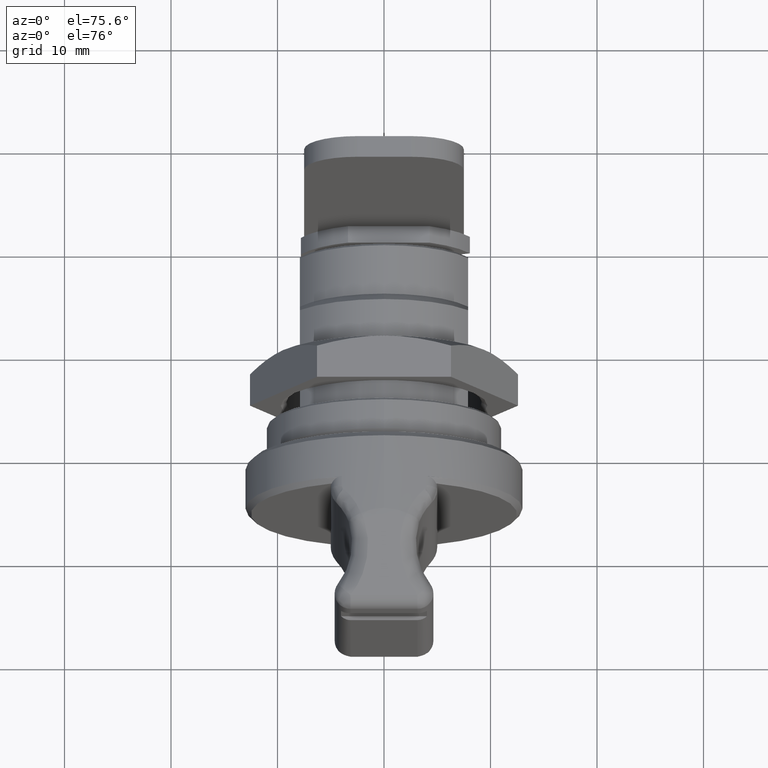
[diagram: clean part render]
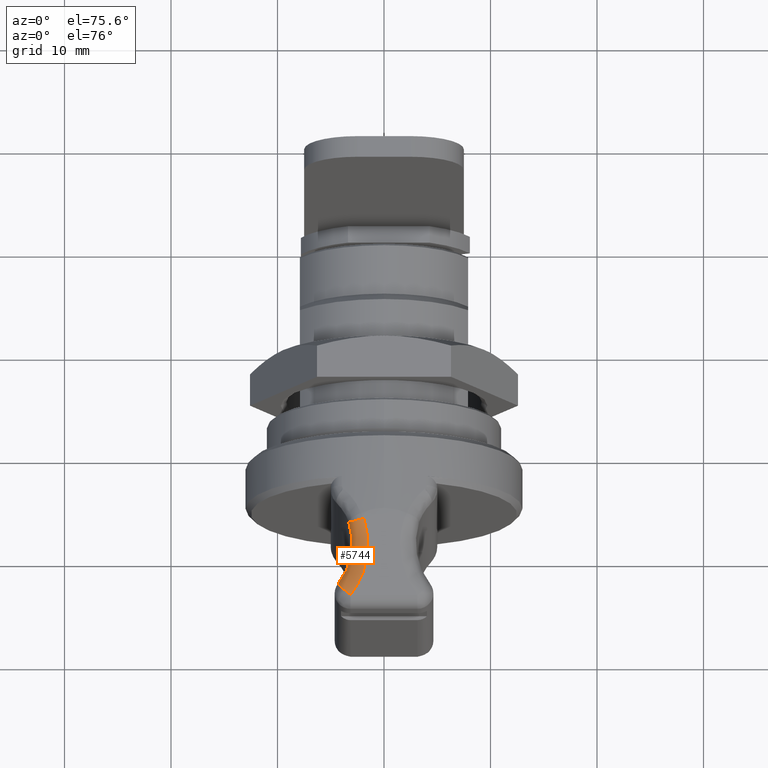
[diagram: same view with one face highlighted and labeled with its STEP entity id]
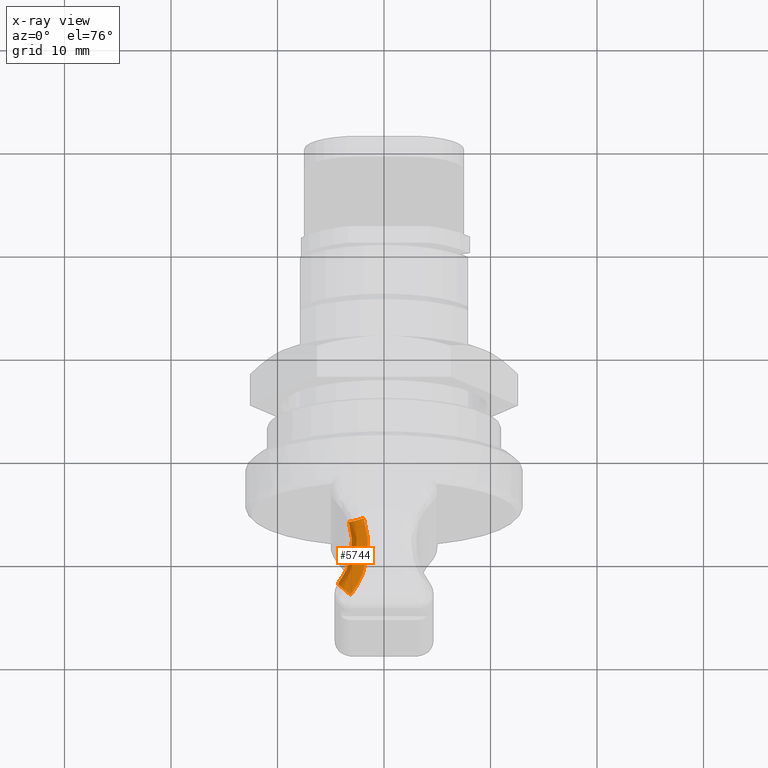
[diagram: x-ray of the same camera — body ghosted, the highlighted face saturated]
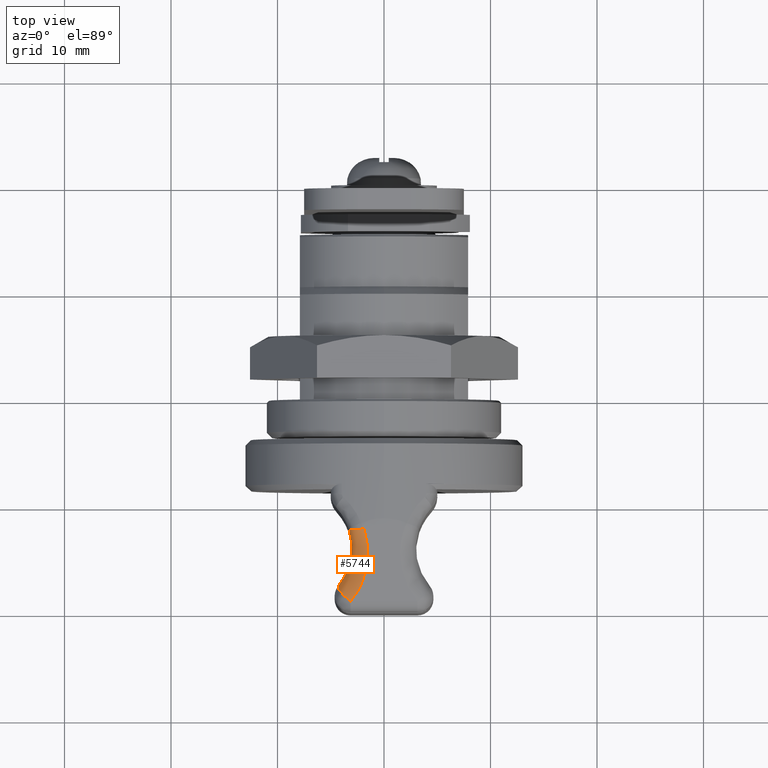
[diagram: same view with one face highlighted and labeled with its STEP entity id]
A machine part, auxiliary view. The second image highlights one B-rep face of the part: STEP entity #5744.
The next image is the same camera in x-ray: the body ghosted, the highlighted face saturated — about 0% of this face is hidden behind the body in this view.
A second angle (top view) of the same face is appended — the face is thin or edge-on in the first view.
In plain terms, the highlighted face is a freeform B-spline surface patch.
Its self-contained STEP definition (entity closure, byte-faithful):
#65 = CARTESIAN_POINT ( 'NONE',  ( -13.35225776170000100, 1.568268776210000300, 12.34626196650000000 ) ) ;
#83 = CARTESIAN_POINT ( 'NONE',  ( -12.34782109123591600, 2.989131911341862400, 12.12717788441817200 ) ) ;
#322 = CARTESIAN_POINT ( 'NONE',  ( -12.89645429470488800, 1.674421811471255900, 12.50713377833178800 ) ) ;
#362 = CARTESIAN_POINT ( 'NONE',  ( -17.43564194611657600, 2.145554250246651100, 10.90506754841130600 ) ) ;
#436 = CARTESIAN_POINT ( 'NONE',  ( -17.53571428569999900, 4.287076491349999700, 8.938727378450000300 ) ) ;
#478 = B_SPLINE_CURVE_WITH_KNOTS ( 'NONE', 3,
 ( #10252, #4280, #5986, #899, #6847, #1767, #7721, #2609, #8579, #3472, #9446, #4313, #10284, #5174, #83, #6014, #936, #6894, #1798, #7760, #2651, #8618, #3507, #9483, #4353, #10317 ),
 .UNSPECIFIED., .F., .F.,
 ( 4, 2, 2, 1, 1, 1, 2, 2, 2, 2, 1, 2, 2, 2, 4 ),
 ( 0.0000000000000000000, 0.1249999999999385200, 0.1874999999999077100, 0.2187499999998922800, 0.2343749999998850400, 0.2421874999998834300, 0.2460937499998841200, 0.2499999999998848100, 0.3749999999999110200, 0.4374999999999233900, 0.4687499999999295600, 0.4843749999999315000, 0.4999999999999335000, 0.7499999999999666900, 1.000000000000000000 ),
 .UNSPECIFIED. ) ;
#797 = FACE_OUTER_BOUND ( 'NONE', #8350, .T. ) ;
#803 = CARTESIAN_POINT ( 'NONE',  ( -15.45544280270000000, 3.174901473719999900, 9.873180878850000400 ) ) ;
#899 = CARTESIAN_POINT ( 'NONE',  ( -12.27369230717699500, 3.234080916470180700, 11.67456626904470300 ) ) ;
#924 = CARTESIAN_POINT ( 'NONE',  ( -13.09880738829999900, 3.053639752740000100, 10.93177646610000100 ) ) ;
#936 = CARTESIAN_POINT ( 'NONE',  ( -12.35330654520352300, 2.917124316180261800, 12.21399263427506000 ) ) ;
#1020 = ORIENTED_EDGE ( 'NONE', *, *, #1642, .F. ) ;
#1032 = B_SPLINE_CURVE_WITH_KNOTS ( 'NONE', 3,
 ( #8827, #2859, #322, #6269, #1190, #7130, #2062, #8005, #2892, #8859, #3739, #9714, #4589, #10565, #5459, #362, #6299, #1225, #7168, #2097 ),
 .UNSPECIFIED., .F., .F.,
 ( 4, 1, 1, 1, 2, 2, 2, 1, 1, 1, 2, 2, 4 ),
 ( 0.0000000000000000000, 0.1250000000000016900, 0.1875000000000025500, 0.2187500000000026600, 0.2343750000000027200, 0.2500000000000027800, 0.5000000000000013300, 0.6250000000000007800, 0.6875000000000004400, 0.7187500000000001100, 0.7343750000000000000, 0.7499999999999997800, 1.000000000000000000 ),
 .UNSPECIFIED. ) ;
#1190 = CARTESIAN_POINT ( 'NONE',  ( -13.66405207685019200, 1.549265713279331000, 12.23621691404343200 ) ) ;
#1225 = CARTESIAN_POINT ( 'NONE',  ( -18.04417623830590100, 2.434547358772757500, 10.69029073940189900 ) ) ;
#1306 = CARTESIAN_POINT ( 'NONE',  ( -17.59303969539999800, 4.281182455559999800, 10.84951540160000000 ) ) ;
#1634 = CARTESIAN_POINT ( 'NONE',  ( -12.18305969120138800, 3.308783580483962300, 11.34312837280012200 ) ) ;
#1642 = EDGE_CURVE ( 'NONE', #7914, #4244, #478, .T. ) ;
#1663 = VERTEX_POINT ( 'NONE', #5108 ) ;
#1671 = CARTESIAN_POINT ( 'NONE',  ( -16.76941785960000100, 3.724509157680000000, 9.282946093910002400 ) ) ;
#1767 = CARTESIAN_POINT ( 'NONE',  ( -12.29275153987835100, 3.200176554593182000, 11.76184971376505900 ) ) ;
#1785 = CARTESIAN_POINT ( 'NONE',  ( -13.07141282700000000, 3.037129630199999900, 12.44538370810000100 ) ) ;
#1798 = CARTESIAN_POINT ( 'NONE',  ( -12.35484924603390900, 2.872954581573810000, 12.26208629601059700 ) ) ;
#2062 = CARTESIAN_POINT ( 'NONE',  ( -13.84911002470589200, 1.530155682935608900, 12.17090234421158400 ) ) ;
#2097 = CARTESIAN_POINT ( 'NONE',  ( -18.99923017660633900, 3.138097352635414800, 10.35321287881796300 ) ) ;
#2125 = B_SPLINE_CURVE_WITH_KNOTS ( 'NONE', 3,
 ( #10121, #2494, #5054, #11029, #5890, #803, #6763, #1671, #7625, #2522 ),
 .UNSPECIFIED., .F., .F.,
 ( 4, 2, 2, 2, 4 ),
 ( 0.0000000000000000000, 0.2500000000048307500, 0.4999999999999995600, 0.7500000000048311400, 1.000000000000000000 ),
 .UNSPECIFIED. ) ;
#2135 = CARTESIAN_POINT ( 'NONE',  ( -18.99923017660000100, 3.138097352630000000, 10.35321287880000100 ) ) ;
#2164 = CARTESIAN_POINT ( 'NONE',  ( -18.02394381610000100, 2.422102564319999800, 10.69743159429999900 ) ) ;
#2388 = CARTESIAN_POINT ( 'NONE',  ( -15.97561762200000000, 3.316465501880000700, 11.42037025099999800 ) ) ;
#2494 = CARTESIAN_POINT ( 'NONE',  ( -12.63076763060000100, 3.152084545810000200, 11.14201892410000000 ) ) ;
#2513 =( BOUNDED_CURVE ( )  B_SPLINE_CURVE ( 2, ( #8139, #3018, #3868 ),
 .UNSPECIFIED., .F., .F. ) 
 B_SPLINE_CURVE_WITH_KNOTS ( ( 3, 3 ),
 ( 0.0000000000000000000, 1.000000000000000000 ),
 .UNSPECIFIED. ) 
 CURVE ( )  GEOMETRIC_REPRESENTATION_ITEM ( )  RATIONAL_B_SPLINE_CURVE ( ( 1.000000000000000000, 0.6269147509928590900, 1.000000000000000000 ) ) 
 REPRESENTATION_ITEM ( '' )  );
#2522 = CARTESIAN_POINT ( 'NONE',  ( -17.53571428570208500, 4.287076491347514600, 8.938727378466513300 ) ) ;
#2592 = CARTESIAN_POINT ( 'NONE',  ( -15.45544280270000000, 3.174901473719999900, 9.873180878850000400 ) ) ;
#2609 = CARTESIAN_POINT ( 'NONE',  ( -12.30259161747126500, 3.178715511952693500, 11.81081903328006000 ) ) ;
#2638 = CARTESIAN_POINT ( 'NONE',  ( -12.18676069270000200, 1.892997284250000000, 12.75761387320000000 ) ) ;
#2644 = ORIENTED_EDGE ( 'NONE', *, *, #9059, .T. ) ;
#2651 = CARTESIAN_POINT ( 'NONE',  ( -12.35516214210777300, 2.851913081336652700, 12.28381910449249000 ) ) ;
#2859 = CARTESIAN_POINT ( 'NONE',  ( -12.46825466505281300, 1.794473604297226000, 12.65826305938644400 ) ) ;
#2892 = CARTESIAN_POINT ( 'NONE',  ( -14.53851010012159000, 1.472909854371238400, 11.92758467053386800 ) ) ;
#3011 = CARTESIAN_POINT ( 'NONE',  ( -16.76941785960000100, 3.724509157680000000, 9.282946093910002400 ) ) ;
#3018 = CARTESIAN_POINT ( 'NONE',  ( -17.90835956580514900, 4.599820655305198800, 10.73822603559818300 ) ) ;
#3453 = CARTESIAN_POINT ( 'NONE',  ( -15.04374105149999800, 3.054538459600000300, 11.74926786410000200 ) ) ;
#3472 = CARTESIAN_POINT ( 'NONE',  ( -12.30584983957223800, 3.170755390164047100, 11.82791588609426200 ) ) ;
#3494 = CARTESIAN_POINT ( 'NONE',  ( -12.18305969120000000, 3.308783580480000100, 11.34312837280000100 ) ) ;
#3507 = CARTESIAN_POINT ( 'NONE',  ( -12.33835309516317800, 2.547086128339163000, 12.53966691992049900 ) ) ;
#3739 = CARTESIAN_POINT ( 'NONE',  ( -16.06133845958631700, 1.669527484767885600, 11.39011583777809700 ) ) ;
#3854 = CARTESIAN_POINT ( 'NONE',  ( -16.41746446200000500, 3.509622732229999500, 11.26442430750000200 ) ) ;
#3868 = CARTESIAN_POINT ( 'NONE',  ( -18.99923017660633900, 3.138097352635414800, 10.35321287881796300 ) ) ;
#3937 = CARTESIAN_POINT ( 'NONE',  ( -17.53571428570208500, 4.287076491347514600, 8.938727378466513300 ) ) ;
#4164 = ORIENTED_EDGE ( 'NONE', *, *, #6542, .T. ) ;
#4244 = VERTEX_POINT ( 'NONE', #4636 ) ;
#4280 = CARTESIAN_POINT ( 'NONE',  ( -12.21807126017753500, 3.296529433138296400, 11.45447994507070200 ) ) ;
#4301 = CARTESIAN_POINT ( 'NONE',  ( -14.55597433040000000, 1.474245693130000100, 11.92142082450000000 ) ) ;
#4313 = CARTESIAN_POINT ( 'NONE',  ( -12.30654860779233500, 3.169004498726695200, 11.83162903590453200 ) ) ;
#4353 = CARTESIAN_POINT ( 'NONE',  ( -12.23739063265712400, 2.055672505315102600, 12.73974448260260800 ) ) ;
#4589 = CARTESIAN_POINT ( 'NONE',  ( -17.01186668454751000, 1.963156966685101000, 11.05463528778959400 ) ) ;
#4636 = CARTESIAN_POINT ( 'NONE',  ( -12.18676069269482000, 1.892997284250000000, 12.75761387318532100 ) ) ;
#5054 = CARTESIAN_POINT ( 'NONE',  ( -13.09880738829999900, 3.053639752740000100, 10.93177646610000100 ) ) ;
#5108 = CARTESIAN_POINT ( 'NONE',  ( -18.99923017660633900, 3.138097352635414800, 10.35321287881796300 ) ) ;
#5159 = CARTESIAN_POINT ( 'NONE',  ( -14.04458469230000100, 2.979764473169999900, 10.50693532420000100 ) ) ;
#5174 = CARTESIAN_POINT ( 'NONE',  ( -12.33636063302005700, 3.071783071577060200, 12.01275300715910400 ) ) ;
#5459 = CARTESIAN_POINT ( 'NONE',  ( -17.36550892746238600, 2.113596809069297100, 10.92982037852471000 ) ) ;
#5531 = CARTESIAN_POINT ( 'NONE',  ( -17.90835956580000100, 4.599820655300000300, 10.73822603560000000 ) ) ;
#5744 = ADVANCED_FACE ( 'NONE', ( #797 ), #9383, .T. ) ;
#5890 = CARTESIAN_POINT ( 'NONE',  ( -14.52224296690000000, 3.004342591649999900, 10.29237224890000100 ) ) ;
#5986 = CARTESIAN_POINT ( 'NONE',  ( -12.24398125553920700, 3.273067473779236500, 11.55178353935141000 ) ) ;
#6005 = CARTESIAN_POINT ( 'NONE',  ( -13.56924686959999700, 2.975503909760000500, 12.26967757539999900 ) ) ;
#6014 = CARTESIAN_POINT ( 'NONE',  ( -12.35057446005985100, 2.960660227957170300, 12.16316642588490500 ) ) ;
#6269 = CARTESIAN_POINT ( 'NONE',  ( -13.40644820372992600, 1.582895408938209200, 12.32713592808647700 ) ) ;
#6299 = CARTESIAN_POINT ( 'NONE',  ( -17.47181876696545200, 2.162408082252270000, 10.89229925869985200 ) ) ;
#6380 = CARTESIAN_POINT ( 'NONE',  ( -18.53680215949999900, 2.750002638119999800, 10.51642276720000000 ) ) ;
#6542 = EDGE_CURVE ( 'NONE', #7914, #10739, #2125, .T. ) ;
#6763 = CARTESIAN_POINT ( 'NONE',  ( -15.91091490310000000, 3.320869542140000100, 9.668583785619999200 ) ) ;
#6847 = CARTESIAN_POINT ( 'NONE',  ( -12.28205962752959500, 3.220416885014003600, 11.71169738186286400 ) ) ;
#6875 = CARTESIAN_POINT ( 'NONE',  ( -12.75657360760000000, 1.693561165630000000, 12.55650343260000000 ) ) ;
#6894 = CARTESIAN_POINT ( 'NONE',  ( -12.35432278405852100, 2.895148267611731300, 12.23861795799031600 ) ) ;
#7130 = CARTESIAN_POINT ( 'NONE',  ( -13.77501236217481500, 1.537453023484307800, 12.19705446039919400 ) ) ;
#7168 = CARTESIAN_POINT ( 'NONE',  ( -18.54209067933691600, 2.754441051323166100, 10.51455623080156900 ) ) ;
#7243 = CARTESIAN_POINT ( 'NONE',  ( -17.17238107709999900, 3.982147523730000600, 9.101935878570000000 ) ) ;
#7250 = ORIENTED_EDGE ( 'NONE', *, *, #10932, .F. ) ;
#7625 = CARTESIAN_POINT ( 'NONE',  ( -17.17238107709999900, 3.982147523730000600, 9.101935878570000000 ) ) ;
#7721 = CARTESIAN_POINT ( 'NONE',  ( -12.29763136421456900, 3.190116181573466700, 11.78554266628295700 ) ) ;
#7749 = CARTESIAN_POINT ( 'NONE',  ( -12.63076763060000100, 3.152084545810000200, 11.14201892410000000 ) ) ;
#7760 = CARTESIAN_POINT ( 'NONE',  ( -12.35509504445928100, 2.858120267131542700, 12.27747813863751200 ) ) ;
#7914 = VERTEX_POINT ( 'NONE', #1634 ) ;
#8005 = CARTESIAN_POINT ( 'NONE',  ( -13.88494913293315000, 1.526900969295612400, 12.15825324719011400 ) ) ;
#8124 = CARTESIAN_POINT ( 'NONE',  ( -17.22772697600000300, 3.990918636180000000, 10.97844930260000000 ) ) ;
#8139 = CARTESIAN_POINT ( 'NONE',  ( -17.53571428570208500, 4.287076491347514600, 8.938727378466513300 ) ) ;
#8350 = EDGE_LOOP ( 'NONE', ( #1020, #4164, #2644, #7250 ) ) ;
#8566 = CARTESIAN_POINT ( 'NONE',  ( -15.16390304360000000, 1.505526934830000000, 11.70685774929999900 ) ) ;
#8579 = CARTESIAN_POINT ( 'NONE',  ( -12.30489778920270200, 3.173125061455257500, 11.82287375784580000 ) ) ;
#8595 = CARTESIAN_POINT ( 'NONE',  ( -12.58375205519999800, 3.168540129100000600, 12.61749927460000000 ) ) ;
#8618 = CARTESIAN_POINT ( 'NONE',  ( -12.35554905516756600, 2.704352812364651600, 12.43124297079378200 ) ) ;
#8827 = CARTESIAN_POINT ( 'NONE',  ( -12.18676069269482000, 1.892997284250000000, 12.75761387318532100 ) ) ;
#8859 = CARTESIAN_POINT ( 'NONE',  ( -15.15059553432793900, 1.503138246183295400, 11.71155451728314700 ) ) ;
#8981 = CARTESIAN_POINT ( 'NONE',  ( -16.93130368960000000, 1.908379417269999900, 11.08306928600000100 ) ) ;
#9059 = EDGE_CURVE ( 'NONE', #10739, #1663, #2513, .T. ) ;
#9353 = CARTESIAN_POINT ( 'NONE',  ( -16.35161192549999900, 1.722601875650000100, 11.28766637919999900 ) ) ;
#9383 =( BOUNDED_SURFACE ( )  B_SPLINE_SURFACE ( 3, 2, ( 
 ( #2135, #5531, #436 ),
 ( #6380, #1306, #7243 ),
 ( #2164, #8124, #3011 ),
 ( #8981, #3854, #9831 ),
 ( #9353, #2388, #2592 ),
 ( #8566, #3453, #9431 ),
 ( #4301, #10273, #5159 ),
 ( #65, #6005, #924 ),
 ( #6875, #1785, #7749 ),
 ( #2638, #8595, #3494 ) ),
 .UNSPECIFIED., .F., .F., .F. ) 
 B_SPLINE_SURFACE_WITH_KNOTS ( ( 4, 2, 2, 2, 4 ),
 ( 3, 3 ),
 ( 4.014166507019999700, 4.272891454949999900, 4.531616402890000100, 4.790341350820000300, 5.049066298759999700 ),
 ( 0.0000000000000000000, 1.000000000000000000 ),
 .UNSPECIFIED. ) 
 GEOMETRIC_REPRESENTATION_ITEM ( )  RATIONAL_B_SPLINE_SURFACE ( (
 ( 1.000000000000000000, 0.6269147509929999800, 1.000000000000000000),
 ( 1.000000000000000000, 0.6356825346529999500, 1.000000000000000000),
 ( 1.000000000000000000, 0.6452175670500000000, 1.000000000000000000),
 ( 1.000000000000000000, 0.6650420254710000000, 1.000000000000000000),
 ( 1.000000000000000000, 0.6753292337159999500, 1.000000000000000000),
 ( 1.000000000000000000, 0.6959201229139999600, 1.000000000000000000),
 ( 1.000000000000000000, 0.7062229116379999900, 1.000000000000000000),
 ( 1.000000000000000000, 0.7262001054019999700, 1.000000000000000000),
 ( 1.000000000000000000, 0.7358759761359999800, 1.000000000000000000),
 ( 1.000000000000000000, 0.7449657885670000200, 1.000000000000000000) ) ) 
 REPRESENTATION_ITEM ( '' )  SURFACE ( )  );
#9431 = CARTESIAN_POINT ( 'NONE',  ( -14.52224296690000000, 3.004342591649999900, 10.29237224890000100 ) ) ;
#9446 = CARTESIAN_POINT ( 'NONE',  ( -12.30647657569347500, 3.169181729876467300, 11.83124980452475600 ) ) ;
#9483 = CARTESIAN_POINT ( 'NONE',  ( -12.27926582439620000, 2.222756185206906700, 12.69376345759562800 ) ) ;
#9714 = CARTESIAN_POINT ( 'NONE',  ( -16.50749036202774900, 1.781668778132667000, 11.23265046044479100 ) ) ;
#9831 = CARTESIAN_POINT ( 'NONE',  ( -15.91091490310000000, 3.320869542140000100, 9.668583785619999200 ) ) ;
#10121 = CARTESIAN_POINT ( 'NONE',  ( -12.18305969120138800, 3.308783580483962300, 11.34312837280012200 ) ) ;
#10252 = CARTESIAN_POINT ( 'NONE',  ( -12.18305969120138800, 3.308783580483962300, 11.34312837280012200 ) ) ;
#10273 = CARTESIAN_POINT ( 'NONE',  ( -14.55523035900000100, 2.982437918620000100, 11.92168340269999900 ) ) ;
#10284 = CARTESIAN_POINT ( 'NONE',  ( -12.32446132662909700, 3.123230054498050500, 11.92777402307824800 ) ) ;
#10317 = CARTESIAN_POINT ( 'NONE',  ( -12.18676069269482000, 1.892997284250000000, 12.75761387318532100 ) ) ;
#10565 = CARTESIAN_POINT ( 'NONE',  ( -17.26002128822524600, 2.066565230868030200, 10.96705131002041400 ) ) ;
#10739 = VERTEX_POINT ( 'NONE', #3937 ) ;
#10932 = EDGE_CURVE ( 'NONE', #4244, #1663, #1032, .T. ) ;
#11029 = CARTESIAN_POINT ( 'NONE',  ( -14.04458469230000100, 2.979764473169999900, 10.50693532420000100 ) ) ;